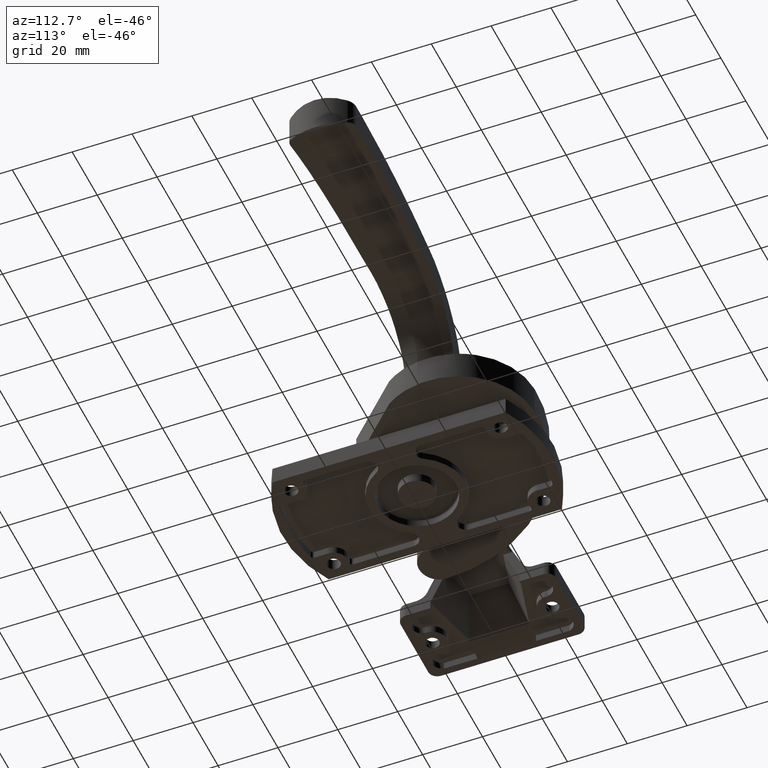
[diagram: clean part render]
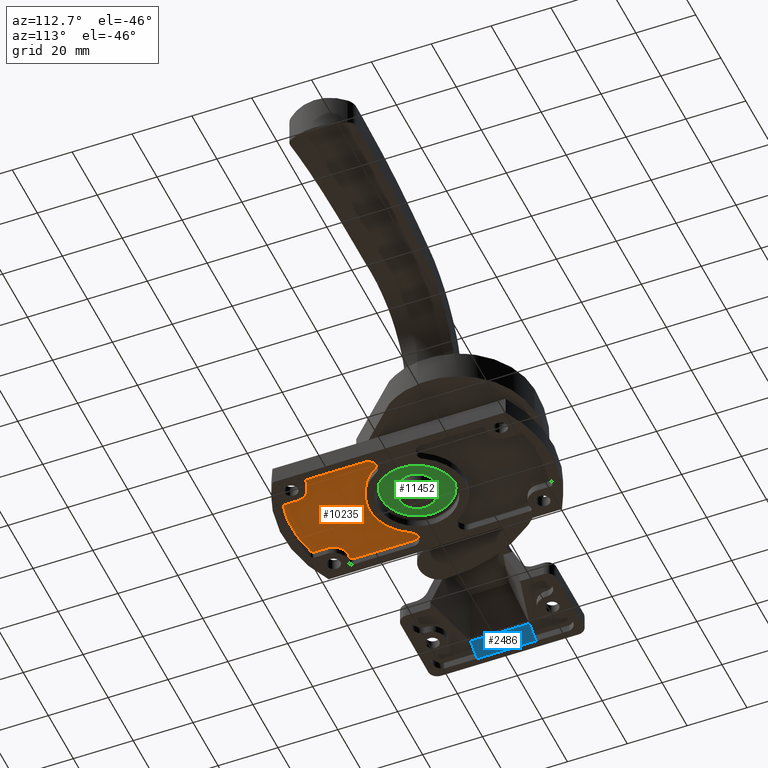
[diagram: same view with three faces highlighted in distinct colors, each labeled with its STEP entity id]
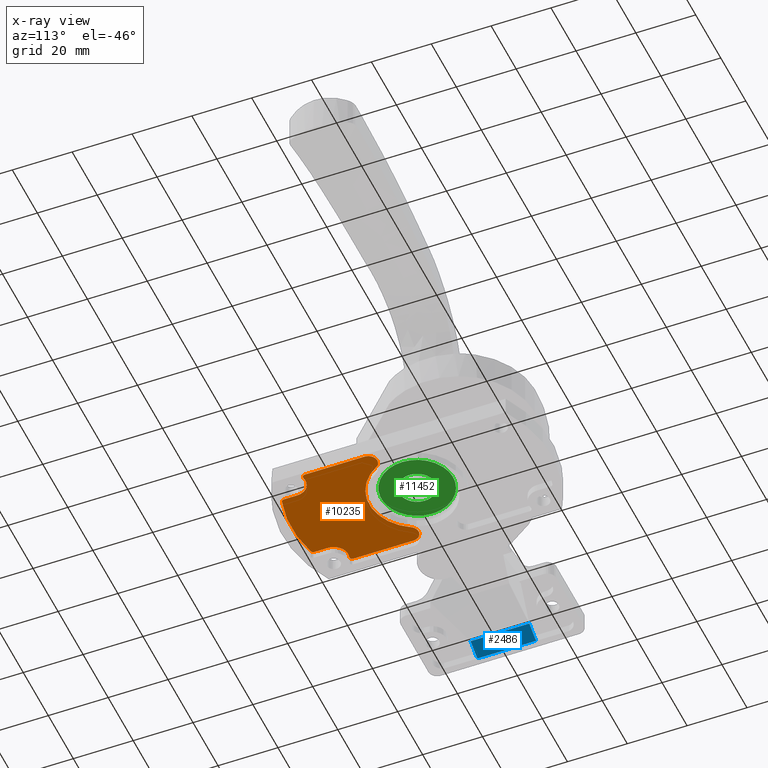
[diagram: x-ray of the same camera — body ghosted, the three highlighted faces saturated]
A machine part, auxiliary view with three faces highlighted in distinct colors.
The next image is the same camera in x-ray (body ghosted, the three faces saturated) — at least one of them is partly hidden behind the body in this view.
Their STEP definitions:

[orange] entity #10235 — the highlighted face is a freeform B-spline surface patch.
#10036=CARTESIAN_POINT('',(21.448049924410430,-4.643550103669600,2.500000000000000));
#10037=CARTESIAN_POINT('',(-21.448050970471950,-4.643550103669600,2.500000000000000));
#10038=CARTESIAN_POINT('',(21.448049924410430,-43.777185147336027,2.500000000000000));
#10039=CARTESIAN_POINT('',(-21.448050970471950,-43.777185147336027,2.500000000000000));
#10040=B_SPLINE_SURFACE_WITH_KNOTS('',1,1,((#10036,#10038),(#10037,#10039)),.UNSPECIFIED.,.F.,.F.,.U.,(2,2),(2,2),(0.0,42.896100894882380),(0.0,39.133635043666430),.UNSPECIFIED.);
#10041=CARTESIAN_POINT('',(19.500000000000000,-29.397321999999999,2.499999999999945));
#10042=VERTEX_POINT('',#10041);
#10043=CARTESIAN_POINT('',(19.500000000000000,-9.420722000000000,2.499999999999945));
#10044=VERTEX_POINT('',#10043);
#10045=CARTESIAN_POINT('',(19.500000000000000,-29.397321999999999,2.499999999999945));
#10046=CARTESIAN_POINT('',(19.500000000000000,-9.420722000000000,2.499999999999945));
#10047=QUASI_UNIFORM_CURVE('',1,(#10045,#10046),.UNSPECIFIED.,.F.,.U.);
#10048=EDGE_CURVE('',#10042,#10044,#10047,.T.);
#10049=ORIENTED_EDGE('',*,*,#10048,.F.);
#10050=CARTESIAN_POINT('',(18.241379271313949,-30.363301012061299,2.499999999999945));
#10051=VERTEX_POINT('',#10050);
#10052=CARTESIAN_POINT('',(18.241379271313949,-30.363301012061299,2.499999999999945));
#10053=CARTESIAN_POINT('',(18.717685746421107,-30.490822065425313,2.499999999999945));
#10054=CARTESIAN_POINT('',(19.108842873210548,-30.190612839314760,2.499999999999945));
#10055=CARTESIAN_POINT('',(19.500000000000004,-29.890403613204217,2.499999999999945));
#10056=CARTESIAN_POINT('',(19.500000000000000,-29.397321999999999,2.499999999999945));
#10064=(BOUNDED_CURVE()B_SPLINE_CURVE(2,(#10052,#10053,#10054,#10055,#10056),.UNSPECIFIED.,.F.,.U.)B_SPLINE_CURVE_WITH_KNOTS((3,2,3),(0.0,0.500000000000000,1.0),.UNSPECIFIED.)CURVE()GEOMETRIC_REPRESENTATION_ITEM()RATIONAL_B_SPLINE_CURVE((1.0,0.896895443519074,1.0,0.896895443519074,1.0))REPRESENTATION_ITEM(''));
#10065=EDGE_CURVE('',#10051,#10042,#10064,.T.);
#10066=ORIENTED_EDGE('',*,*,#10065,.F.);
#10067=CARTESIAN_POINT('',(12.199999999999999,-35.0,2.499999999999945));
#10068=VERTEX_POINT('',#10067);
#10069=CARTESIAN_POINT('',(18.241379271313960,-30.363301012061282,2.499999999999945));
#10070=CARTESIAN_POINT('',(15.955108299088337,-29.751199730328214,2.499999999999945));
#10071=CARTESIAN_POINT('',(14.077554149544170,-31.192204016605739,2.499999999999945));
#10072=CARTESIAN_POINT('',(12.200000000000003,-32.633208302883268,2.499999999999945));
#10073=CARTESIAN_POINT('',(12.199999999999999,-35.0,2.499999999999945));
#10081=(BOUNDED_CURVE()B_SPLINE_CURVE(2,(#10069,#10070,#10071,#10072,#10073),.UNSPECIFIED.,.F.,.U.)B_SPLINE_CURVE_WITH_KNOTS((3,2,3),(0.0,0.500000000000000,1.0),.UNSPECIFIED.)CURVE()GEOMETRIC_REPRESENTATION_ITEM()RATIONAL_B_SPLINE_CURVE((1.0,0.896895446947868,1.0,0.896895446947868,1.0))REPRESENTATION_ITEM(''));
#10082=EDGE_CURVE('',#10051,#10068,#10081,.T.);
#10083=ORIENTED_EDGE('',*,*,#10082,.T.);
#10084=CARTESIAN_POINT('',(12.199999999999999,-39.440587999999892,2.499999999999945));
#10085=VERTEX_POINT('',#10084);
#10086=CARTESIAN_POINT('',(12.199999999999999,-39.440587999999892,2.499999999999945));
#10087=CARTESIAN_POINT('',(12.199999999999999,-35.0,2.499999999999945));
#10088=QUASI_UNIFORM_CURVE('',1,(#10086,#10087),.UNSPECIFIED.,.F.,.U.);
#10089=EDGE_CURVE('',#10085,#10068,#10088,.T.);
#10090=ORIENTED_EDGE('',*,*,#10089,.F.);
#10091=CARTESIAN_POINT('',(11.473170496950161,-40.402553864179353,2.499999999999945));
#10092=VERTEX_POINT('',#10091);
#10093=CARTESIAN_POINT('',(11.473170496950161,-40.402553864179353,2.499999999999945));
#10094=CARTESIAN_POINT('',(12.199999999999999,-40.196155065568348,2.499999999999945));
#10095=CARTESIAN_POINT('',(12.199999999999999,-39.440587999999892,2.499999999999945));
#10103=(BOUNDED_CURVE()B_SPLINE_CURVE(2,(#10093,#10094,#10095),.UNSPECIFIED.,.F.,.U.)CURVE()GEOMETRIC_REPRESENTATION_ITEM()QUASI_UNIFORM_CURVE()RATIONAL_B_SPLINE_CURVE((1.0,0.797862906855593,1.0))REPRESENTATION_ITEM(''));
#10104=EDGE_CURVE('',#10092,#10085,#10103,.T.);
#10105=ORIENTED_EDGE('',*,*,#10104,.F.);
#10106=CARTESIAN_POINT('',(-11.473170726117839,-40.402553568194662,2.499999999999945));
#10107=VERTEX_POINT('',#10106);
#10108=CARTESIAN_POINT('',(-11.473170726117839,-40.402553568194662,2.499999999999945));
#10109=CARTESIAN_POINT('',(-0.000000156609435,-43.660606399457308,2.499999999999945));
#10110=CARTESIAN_POINT('',(11.473170496950139,-40.402553864179339,2.499999999999945));
#10118=(BOUNDED_CURVE()B_SPLINE_CURVE(2,(#10108,#10109,#10110),.UNSPECIFIED.,.F.,.U.)CURVE()GEOMETRIC_REPRESENTATION_ITEM()QUASI_UNIFORM_CURVE()RATIONAL_B_SPLINE_CURVE((1.0,0.961965567214890,1.0))REPRESENTATION_ITEM(''));
#10119=EDGE_CURVE('',#10107,#10092,#10118,.T.);
#10120=ORIENTED_EDGE('',*,*,#10119,.F.);
#10121=CARTESIAN_POINT('',(-12.199999999999880,-39.440587999999892,2.499999999999945));
#10122=VERTEX_POINT('',#10121);
#10123=CARTESIAN_POINT('',(-12.199999999999999,-39.440587999999892,2.499999999999945));
#10124=CARTESIAN_POINT('',(-12.199999999999999,-40.196154828910572,2.499999999999945));
#10125=CARTESIAN_POINT('',(-11.473170726117839,-40.402553568194648,2.499999999999945));
#10133=(BOUNDED_CURVE()B_SPLINE_CURVE(2,(#10123,#10124,#10125),.UNSPECIFIED.,.F.,.U.)CURVE()GEOMETRIC_REPRESENTATION_ITEM()QUASI_UNIFORM_CURVE()RATIONAL_B_SPLINE_CURVE((1.0,0.797862997674989,1.0))REPRESENTATION_ITEM(''));
#10134=EDGE_CURVE('',#10122,#10107,#10133,.T.);
#10135=ORIENTED_EDGE('',*,*,#10134,.F.);
#10136=CARTESIAN_POINT('',(-12.199999999999999,-35.0,2.499999999999945));
#10137=VERTEX_POINT('',#10136);
#10138=CARTESIAN_POINT('',(-12.199999999999999,-35.0,2.499999999999945));
#10139=CARTESIAN_POINT('',(-12.199999999999880,-39.440587999999892,2.499999999999945));
#10140=QUASI_UNIFORM_CURVE('',1,(#10138,#10139),.UNSPECIFIED.,.F.,.U.);
#10141=EDGE_CURVE('',#10137,#10122,#10140,.T.);
#10142=ORIENTED_EDGE('',*,*,#10141,.F.);
#10143=CARTESIAN_POINT('',(-18.241379318476248,-30.363300955820549,2.499999999999945));
#10144=VERTEX_POINT('',#10143);
#10145=CARTESIAN_POINT('',(-12.199999999999999,-35.0,2.499999999999945));
#10146=CARTESIAN_POINT('',(-12.199999999999998,-32.633208293245048,2.499999999999945));
#10147=CARTESIAN_POINT('',(-14.077554161845240,-31.192204007164790,2.499999999999945));
#10148=CARTESIAN_POINT('',(-15.955108323690480,-29.751199721084532,2.499999999999945));
#10149=CARTESIAN_POINT('',(-18.241379318476248,-30.363300955820549,2.499999999999945));
#10157=(BOUNDED_CURVE()B_SPLINE_CURVE(2,(#10145,#10146,#10147,#10148,#10149),.UNSPECIFIED.,.F.,.U.)B_SPLINE_CURVE_WITH_KNOTS((3,2,3),(0.0,0.500000000000000,1.0),.UNSPECIFIED.)CURVE()GEOMETRIC_REPRESENTATION_ITEM()RATIONAL_B_SPLINE_CURVE((1.0,0.896895446233536,1.0,0.896895446233536,1.0))REPRESENTATION_ITEM(''));
#10158=EDGE_CURVE('',#10137,#10144,#10157,.T.);
#10159=ORIENTED_EDGE('',*,*,#10158,.T.);
#10160=CARTESIAN_POINT('',(-19.500000000000000,-29.397321999999999,2.499999999999945));
#10161=VERTEX_POINT('',#10160);
#10162=CARTESIAN_POINT('',(-19.500000000000000,-29.397321999999999,2.499999999999945));
#10163=CARTESIAN_POINT('',(-19.500000000000000,-29.890403603565986,2.499999999999946));
#10164=CARTESIAN_POINT('',(-19.108842885511631,-30.190612829873810,2.499999999999945));
#10165=CARTESIAN_POINT('',(-18.717685771023252,-30.490822056181628,2.499999999999946));
#10166=CARTESIAN_POINT('',(-18.241379318476248,-30.363300955820559,2.499999999999945));
#10174=(BOUNDED_CURVE()B_SPLINE_CURVE(2,(#10162,#10163,#10164,#10165,#10166),.UNSPECIFIED.,.F.,.U.)B_SPLINE_CURVE_WITH_KNOTS((3,2,3),(0.0,0.500000000000000,1.0),.UNSPECIFIED.)CURVE()GEOMETRIC_REPRESENTATION_ITEM()RATIONAL_B_SPLINE_CURVE((1.0,0.896895446947867,1.0,0.896895446947867,1.0))REPRESENTATION_ITEM(''));
#10175=EDGE_CURVE('',#10161,#10144,#10174,.T.);
#10176=ORIENTED_EDGE('',*,*,#10175,.F.);
#10177=CARTESIAN_POINT('',(-19.500000000000000,-9.420722000000000,2.499999999999945));
#10178=VERTEX_POINT('',#10177);
#10179=CARTESIAN_POINT('',(-19.500000000000000,-9.420722000000000,2.499999999999945));
#10180=CARTESIAN_POINT('',(-19.500000000000000,-29.397321999999999,2.499999999999945));
#10181=QUASI_UNIFORM_CURVE('',1,(#10179,#10180),.UNSPECIFIED.,.F.,.U.);
#10182=EDGE_CURVE('',#10178,#10161,#10181,.T.);
#10183=ORIENTED_EDGE('',*,*,#10182,.F.);
#10184=CARTESIAN_POINT('',(-13.894736862473881,-7.933239409132280,2.499999999999945));
#10185=VERTEX_POINT('',#10184);
#10186=CARTESIAN_POINT('',(-13.894736862473881,-7.933239409132280,2.499999999999945));
#10187=CARTESIAN_POINT('',(-15.038967701537848,-5.929167423892118,2.499999999999945));
#10188=CARTESIAN_POINT('',(-17.269483850768928,-6.521085022134351,2.499999999999945));
#10189=CARTESIAN_POINT('',(-19.500000000000004,-7.113002620376585,2.499999999999945));
#10190=CARTESIAN_POINT('',(-19.500000000000000,-9.420722000000000,2.499999999999945));
#10198=(BOUNDED_CURVE()B_SPLINE_CURVE(2,(#10186,#10187,#10188,#10189,#10190),.UNSPECIFIED.,.F.,.U.)B_SPLINE_CURVE_WITH_KNOTS((3,2,3),(0.0,0.500000000000000,1.0),.UNSPECIFIED.)CURVE()GEOMETRIC_REPRESENTATION_ITEM()RATIONAL_B_SPLINE_CURVE((1.0,0.792620532450105,1.0,0.792620532450105,1.0))REPRESENTATION_ITEM(''));
#10199=EDGE_CURVE('',#10185,#10178,#10198,.T.);
#10200=ORIENTED_EDGE('',*,*,#10199,.F.);
#10201=CARTESIAN_POINT('',(13.894736838286139,-7.933239610787680,2.499999999999945));
#10202=VERTEX_POINT('',#10201);
#10203=CARTESIAN_POINT('',(-13.894736862473881,-7.933239409132279,2.499999999999945));
#10204=CARTESIAN_POINT('',(-9.288997061424350,-15.999999945684122,2.499999999999945));
#10205=CARTESIAN_POINT('',(-0.000000093557373,-16.0,2.499999999999945));
#10206=CARTESIAN_POINT('',(9.288996874309605,-16.000000054315887,2.499999999999945));
#10207=CARTESIAN_POINT('',(13.894736838286139,-7.933239610787680,2.499999999999945));
#10215=(BOUNDED_CURVE()B_SPLINE_CURVE(2,(#10203,#10204,#10205,#10206,#10207),.UNSPECIFIED.,.F.,.U.)B_SPLINE_CURVE_WITH_KNOTS((3,2,3),(0.0,0.500000000000000,1.0),.UNSPECIFIED.)CURVE()GEOMETRIC_REPRESENTATION_ITEM()RATIONAL_B_SPLINE_CURVE((1.0,0.864820058783536,1.0,0.864820058783536,1.0))REPRESENTATION_ITEM(''));
#10216=EDGE_CURVE('',#10185,#10202,#10215,.T.);
#10217=ORIENTED_EDGE('',*,*,#10216,.T.);
#10218=CARTESIAN_POINT('',(19.500000000000000,-9.420722000000000,2.499999999999945));
#10219=CARTESIAN_POINT('',(19.500000000000000,-7.113002545917558,2.499999999999945));
#10220=CARTESIAN_POINT('',(17.269483760341458,-6.521084998137392,2.499999999999945));
#10221=CARTESIAN_POINT('',(15.038967520682922,-5.929167450357228,2.499999999999945));
#10222=CARTESIAN_POINT('',(13.894736838286150,-7.933239610787688,2.499999999999945));
#10230=(BOUNDED_CURVE()B_SPLINE_CURVE(2,(#10218,#10219,#10220,#10221,#10222),.UNSPECIFIED.,.F.,.U.)B_SPLINE_CURVE_WITH_KNOTS((3,2,3),(0.0,0.500000000000000,1.0),.UNSPECIFIED.)CURVE()GEOMETRIC_REPRESENTATION_ITEM()RATIONAL_B_SPLINE_CURVE((1.0,0.792620522942879,1.0,0.792620522942879,1.0))REPRESENTATION_ITEM(''));
#10231=EDGE_CURVE('',#10044,#10202,#10230,.T.);
#10232=ORIENTED_EDGE('',*,*,#10231,.F.);
#10233=EDGE_LOOP('',(#10049,#10066,#10083,#10090,#10105,#10120,#10135,#10142,#10159,#10176,#10183,#10200,#10217,#10232));
#10234=FACE_OUTER_BOUND('',#10233,.T.);
#10235=ADVANCED_FACE('',(#10234),#10040,.F.);

[blue] entity #2486 — the highlighted face is a freeform B-spline surface patch.
#2414=CARTESIAN_POINT('',(-71.500000000000000,-9.819908408735921,0.0));
#2415=VERTEX_POINT('',#2414);
#2423=CARTESIAN_POINT('',(-66.088194915378097,-9.819908408735921,2.499999999999960));
#2424=VERTEX_POINT('',#2423);
#2425=CARTESIAN_POINT('',(-66.088194915378097,-9.819908408735921,2.499999999999960));
#2426=CARTESIAN_POINT('',(-71.500000000000000,-9.819908408735921,0.0));
#2427=QUASI_UNIFORM_CURVE('',1,(#2425,#2426),.UNSPECIFIED.,.F.,.U.);
#2428=EDGE_CURVE('',#2424,#2415,#2427,.T.);
#2443=CARTESIAN_POINT('',(-71.500000000000000,9.819908408735921,0.0));
#2444=VERTEX_POINT('',#2443);
#2452=CARTESIAN_POINT('',(-66.088194915378097,9.819908408735921,2.499999999999945));
#2453=VERTEX_POINT('',#2452);
#2459=CARTESIAN_POINT('',(-66.088194915378097,9.819908408735921,2.499999999999945));
#2460=CARTESIAN_POINT('',(-71.500000000000000,9.819908408735921,0.0));
#2461=QUASI_UNIFORM_CURVE('',1,(#2459,#2460),.UNSPECIFIED.,.F.,.U.);
#2462=EDGE_CURVE('',#2453,#2444,#2461,.T.);
#2467=CARTESIAN_POINT('',(-71.770319614818206,10.800916966171100,-0.124874977291010));
#2468=CARTESIAN_POINT('',(-65.817875929568885,10.800916966171100,2.624874686718303));
#2469=CARTESIAN_POINT('',(-71.770319614818206,-10.800916263796511,-0.124874977291010));
#2470=CARTESIAN_POINT('',(-65.817875929568885,-10.800916263796511,2.624874686718303));
#2471=B_SPLINE_SURFACE_WITH_KNOTS('',1,1,((#2467,#2469),(#2468,#2470)),.UNSPECIFIED.,.F.,.F.,.U.,(2,2),(2,2),(0.0,6.556882570306094),(0.0,21.601833229967610),.UNSPECIFIED.);
#2472=ORIENTED_EDGE('',*,*,#2428,.T.);
#2473=CARTESIAN_POINT('',(-71.500000000000000,9.819908408735921,0.0));
#2474=CARTESIAN_POINT('',(-71.500000000000000,-9.819908408735921,0.0));
#2475=QUASI_UNIFORM_CURVE('',1,(#2473,#2474),.UNSPECIFIED.,.F.,.U.);
#2476=EDGE_CURVE('',#2444,#2415,#2475,.T.);
#2477=ORIENTED_EDGE('',*,*,#2476,.F.);
#2478=ORIENTED_EDGE('',*,*,#2462,.F.);
#2479=CARTESIAN_POINT('',(-66.088194915378097,9.819908408735921,2.499999999999945));
#2480=CARTESIAN_POINT('',(-66.088194915378097,-9.819908408735921,2.499999999999960));
#2481=QUASI_UNIFORM_CURVE('',1,(#2479,#2480),.UNSPECIFIED.,.F.,.U.);
#2482=EDGE_CURVE('',#2453,#2424,#2481,.T.);
#2483=ORIENTED_EDGE('',*,*,#2482,.T.);
#2484=EDGE_LOOP('',(#2472,#2477,#2478,#2483));
#2485=FACE_OUTER_BOUND('',#2484,.T.);
#2486=ADVANCED_FACE('',(#2485),#2471,.T.);

[green] entity #11452 — the highlighted face is a freeform B-spline surface patch.
#8192=CARTESIAN_POINT('',(6.0,0.0,3.500000000000000));
#8193=VERTEX_POINT('',#8192);
#8194=CARTESIAN_POINT('',(0.470754574628246,5.981504002378212,3.500000000000000));
#8195=VERTEX_POINT('',#8194);
#8196=CARTESIAN_POINT('',(6.0,0.0,3.500000000000000));
#8197=CARTESIAN_POINT('',(6.0,5.546342949463400,3.500000000000000));
#8198=CARTESIAN_POINT('',(0.470754574628246,5.981504002378212,3.500000000000000));
#8206=(BOUNDED_CURVE()B_SPLINE_CURVE(2,(#8196,#8197,#8198),.UNSPECIFIED.,.F.,.U.)B_SPLINE_CURVE_WITH_KNOTS((3,3),(0.0,0.236331300617797),.UNSPECIFIED.)CURVE()GEOMETRIC_REPRESENTATION_ITEM()RATIONAL_B_SPLINE_CURVE((1.0,0.723120658622735,0.969723356140574))REPRESENTATION_ITEM(''));
#8207=EDGE_CURVE('',#8193,#8195,#8206,.T.);
#8209=CARTESIAN_POINT('',(-0.470754574628246,-5.981504002378212,3.500000000000000));
#8210=VERTEX_POINT('',#8209);
#8211=CARTESIAN_POINT('',(-0.470754574628246,-5.981504002378213,3.500000000000000));
#8212=CARTESIAN_POINT('',(-0.235740642308405,-6.0,3.500000000000000));
#8213=CARTESIAN_POINT('',(0.0,-6.0,3.500000000000000));
#8214=CARTESIAN_POINT('',(6.0,-6.0,3.499999999999999));
#8215=CARTESIAN_POINT('',(6.0,0.0,3.500000000000000));
#8223=(BOUNDED_CURVE()B_SPLINE_CURVE(2,(#8211,#8212,#8213,#8214,#8215),.UNSPECIFIED.,.F.,.U.)B_SPLINE_CURVE_WITH_KNOTS((3,2,3),(0.736331300617797,0.750000000000000,1.0),.UNSPECIFIED.)CURVE()GEOMETRIC_REPRESENTATION_ITEM()RATIONAL_B_SPLINE_CURVE((0.969723356140574,0.983986122563812,1.0,0.707106781186548,1.0))REPRESENTATION_ITEM(''));
#8224=EDGE_CURVE('',#8210,#8193,#8223,.T.);
#8291=CARTESIAN_POINT('',(-6.0,0.0,3.500000000000000));
#8292=VERTEX_POINT('',#8291);
#8293=CARTESIAN_POINT('',(0.470754574628246,5.981504002378213,3.500000000000000));
#8294=CARTESIAN_POINT('',(0.235740642308405,6.0,3.500000000000000));
#8295=CARTESIAN_POINT('',(0.0,6.0,3.500000000000000));
#8296=CARTESIAN_POINT('',(-6.0,6.0,3.499999999999999));
#8297=CARTESIAN_POINT('',(-6.0,0.0,3.500000000000000));
#8305=(BOUNDED_CURVE()B_SPLINE_CURVE(2,(#8293,#8294,#8295,#8296,#8297),.UNSPECIFIED.,.F.,.U.)B_SPLINE_CURVE_WITH_KNOTS((3,2,3),(0.236331300617797,0.250000000000000,0.500000000000000),.UNSPECIFIED.)CURVE()GEOMETRIC_REPRESENTATION_ITEM()RATIONAL_B_SPLINE_CURVE((0.969723356140574,0.983986122563812,1.0,0.707106781186548,1.0))REPRESENTATION_ITEM(''));
#8306=EDGE_CURVE('',#8195,#8292,#8305,.T.);
#8340=CARTESIAN_POINT('',(-6.0,0.0,3.500000000000000));
#8341=CARTESIAN_POINT('',(-6.000000000000001,-5.546342949463366,3.500000000000000));
#8342=CARTESIAN_POINT('',(-0.470754574628246,-5.981504002378212,3.500000000000000));
#8350=(BOUNDED_CURVE()B_SPLINE_CURVE(2,(#8340,#8341,#8342),.UNSPECIFIED.,.F.,.U.)B_SPLINE_CURVE_WITH_KNOTS((3,3),(0.500000000000000,0.736331300617796),.UNSPECIFIED.)CURVE()GEOMETRIC_REPRESENTATION_ITEM()RATIONAL_B_SPLINE_CURVE((1.0,0.723120658622736,0.969723356140572))REPRESENTATION_ITEM(''));
#8351=EDGE_CURVE('',#8292,#8210,#8350,.T.);
#9935=CARTESIAN_POINT('',(11.999995094468019,0.075402131092295,3.499999780164377));
#9936=VERTEX_POINT('',#9935);
#9950=CARTESIAN_POINT('',(-12.0,0.0,3.500000000000000));
#9951=VERTEX_POINT('',#9950);
#9952=CARTESIAN_POINT('',(11.999995094468018,0.075402131092295,3.499999780164378));
#9953=CARTESIAN_POINT('',(11.925066351572628,12.000001455393470,3.499999780507546));
#9954=CARTESIAN_POINT('',(0.000116355765123,12.000000731124260,3.499999889736857));
#9955=CARTESIAN_POINT('',(-11.999999635586985,12.000000002289799,3.499999999654668));
#9956=CARTESIAN_POINT('',(-12.0,0.0,3.500000000000000));
#9964=(BOUNDED_CURVE()B_SPLINE_CURVE(2,(#9952,#9953,#9954,#9955,#9956),.UNSPECIFIED.,.F.,.U.)B_SPLINE_CURVE_WITH_KNOTS((3,2,3),(0.001109324172317,0.250000000000000,0.500000000000000),.UNSPECIFIED.)CURVE()GEOMETRIC_REPRESENTATION_ITEM()RATIONAL_B_SPLINE_CURVE((0.997412225681459,0.708406435296698,1.0,0.707106781186548,1.0))REPRESENTATION_ITEM(''));
#9965=EDGE_CURVE('',#9936,#9951,#9964,.T.);
#9967=CARTESIAN_POINT('',(0.836799019588569,-11.970788095876539,3.500000000000000));
#9968=VERTEX_POINT('',#9967);
#9969=CARTESIAN_POINT('',(-12.0,0.0,3.500000000000000));
#9970=CARTESIAN_POINT('',(-12.0,-12.0,3.499999999999999));
#9971=CARTESIAN_POINT('',(0.0,-12.0,3.500000000000000));
#9972=CARTESIAN_POINT('',(0.418909390495340,-11.999999999999996,3.500000000000001));
#9973=CARTESIAN_POINT('',(0.836799019588569,-11.970788095876543,3.500000000000000));
#9981=(BOUNDED_CURVE()B_SPLINE_CURVE(2,(#9969,#9970,#9971,#9972,#9973),.UNSPECIFIED.,.F.,.U.)B_SPLINE_CURVE_WITH_KNOTS((3,2,3),(0.500000000000000,0.750000000000000,0.762166313464831),.UNSPECIFIED.)CURVE()GEOMETRIC_REPRESENTATION_ITEM()RATIONAL_B_SPLINE_CURVE((1.0,0.707106781186548,1.0,0.985746277152769,0.972879876387139))REPRESENTATION_ITEM(''));
#9982=EDGE_CURVE('',#9951,#9968,#9981,.T.);
#10019=CARTESIAN_POINT('',(0.836799019588569,-11.970788095876548,3.500000000000000));
#10020=CARTESIAN_POINT('',(11.999997547576816,-11.152741106551087,3.499999890082189));
#10021=CARTESIAN_POINT('',(11.999995094468019,0.075402131092295,3.499999780164377));
#10029=(BOUNDED_CURVE()B_SPLINE_CURVE(2,(#10019,#10020,#10021),.UNSPECIFIED.,.F.,.U.)B_SPLINE_CURVE_WITH_KNOTS((3,3),(0.762166313464832,1.0),.UNSPECIFIED.)CURVE()GEOMETRIC_REPRESENTATION_ITEM()RATIONAL_B_SPLINE_CURVE((0.972879876387138,0.721360504033779,1.0))REPRESENTATION_ITEM(''));
#10030=EDGE_CURVE('',#9968,#9936,#10029,.T.);
#11436=CARTESIAN_POINT('',(-13.198799708452031,13.198670415797420,3.500000000000000));
#11437=CARTESIAN_POINT('',(13.198795446650079,13.198670415797420,3.500000000000000));
#11438=CARTESIAN_POINT('',(-13.198799708452031,-13.197359452669490,3.500000000000000));
#11439=CARTESIAN_POINT('',(13.198795446650079,-13.197359452669490,3.500000000000000));
#11440=B_SPLINE_SURFACE_WITH_KNOTS('',1,1,((#11436,#11438),(#11437,#11439)),.UNSPECIFIED.,.F.,.F.,.U.,(2,2),(2,2),(0.0,26.397595155102110),(0.0,26.396029868466911),.UNSPECIFIED.);
#11441=ORIENTED_EDGE('',*,*,#10030,.F.);
#11442=ORIENTED_EDGE('',*,*,#9982,.F.);
#11443=ORIENTED_EDGE('',*,*,#9965,.F.);
#11444=EDGE_LOOP('',(#11441,#11442,#11443));
#11445=FACE_OUTER_BOUND('',#11444,.T.);
#11446=ORIENTED_EDGE('',*,*,#8351,.T.);
#11447=ORIENTED_EDGE('',*,*,#8224,.T.);
#11448=ORIENTED_EDGE('',*,*,#8207,.T.);
#11449=ORIENTED_EDGE('',*,*,#8306,.T.);
#11450=EDGE_LOOP('',(#11446,#11447,#11448,#11449));
#11451=FACE_BOUND('',#11450,.T.);
#11452=ADVANCED_FACE('',(#11445,#11451),#11440,.T.);